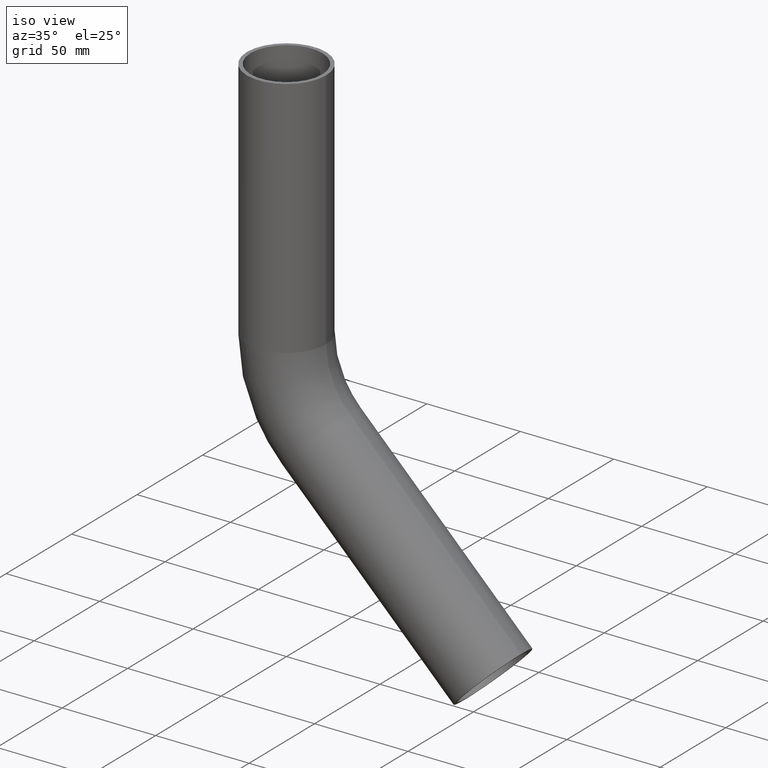
[diagram: clean part render]
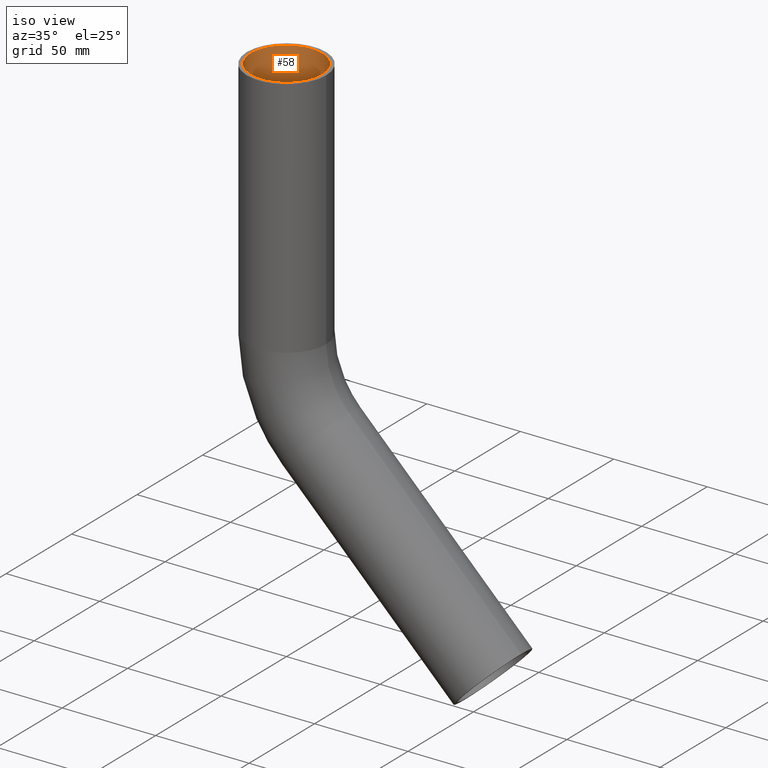
[diagram: same view with one face highlighted and labeled with its STEP entity id]
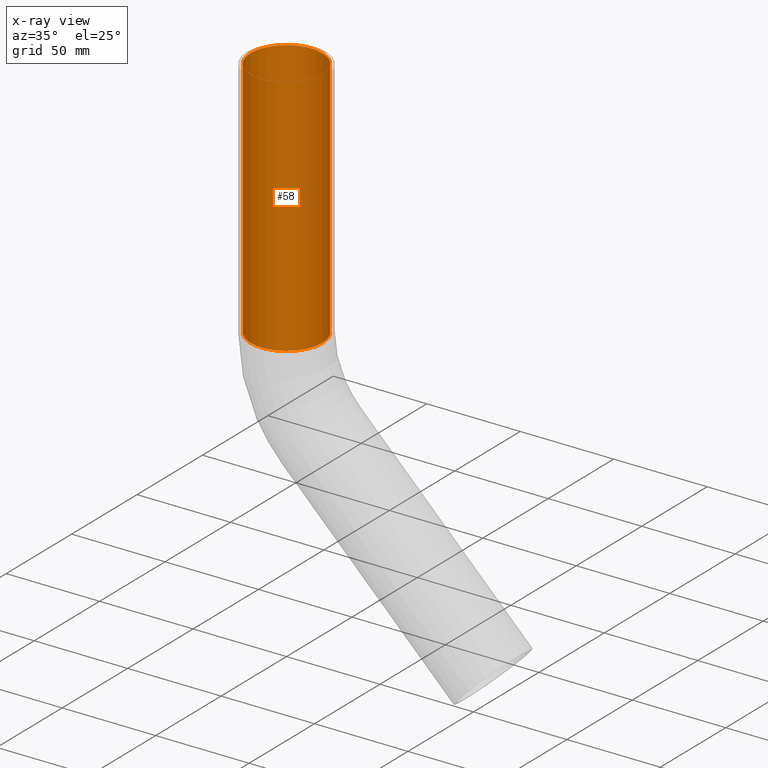
[diagram: x-ray of the same camera — body ghosted, the highlighted face saturated]
A machine part, iso view. The second image highlights one B-rep face of the part: STEP entity #58.
The next image is the same camera in x-ray: the body ghosted, the highlighted face saturated — about 0% of this face is hidden behind the body in this view.
In plain terms, the highlighted cylindrical surface (bore or boss wall) has radius 19.2 mm, axis along (0, 0, -1).
Its self-contained STEP definition (entity closure, byte-faithful):
#58=ADVANCED_FACE('',(#130,#132),#134,.F.);
#130=FACE_OUTER_BOUND('',#131,.T.);
#131=EDGE_LOOP('',(#202));
#132=FACE_OUTER_BOUND('',#133,.T.);
#133=EDGE_LOOP('',(#203));
#134=CYLINDRICAL_SURFACE('',#135,19.2);
#135=AXIS2_PLACEMENT_3D('',#136,#137,#138);
#136=CARTESIAN_POINT('',(0.,0.,0.));
#137=DIRECTION('',(0.,0.,-1.));
#138=DIRECTION('',(1.,0.,0.));
#202=ORIENTED_EDGE('',*,*,#218,.F.);
#203=ORIENTED_EDGE('',*,*,#219,.T.);
#218=EDGE_CURVE('',#226,#226,#227,.T.);
#219=EDGE_CURVE('',#228,#228,#229,.T.);
#226=VERTEX_POINT('',#242);
#227=CIRCLE('',#243,19.2);
#228=VERTEX_POINT('',#247);
#229=CIRCLE('',#248,19.2);
#242=CARTESIAN_POINT('',(19.2,0.,0.));
#243=AXIS2_PLACEMENT_3D('',#244,#245,#246);
#244=CARTESIAN_POINT('',(0.,0.,0.));
#245=DIRECTION('',(0.,0.,-1.));
#246=DIRECTION('',(1.,0.,0.));
#247=CARTESIAN_POINT('',(19.2,4.70264370872584E-015,-130.));
#248=AXIS2_PLACEMENT_3D('',#249,#250,#251);
#249=CARTESIAN_POINT('',(0.,0.,-130.));
#250=DIRECTION('',(-8.93764447496981E-016,-0.,-1.));
#251=DIRECTION('',(1.,-1.22464679914735E-016,-8.93764447496981E-016));